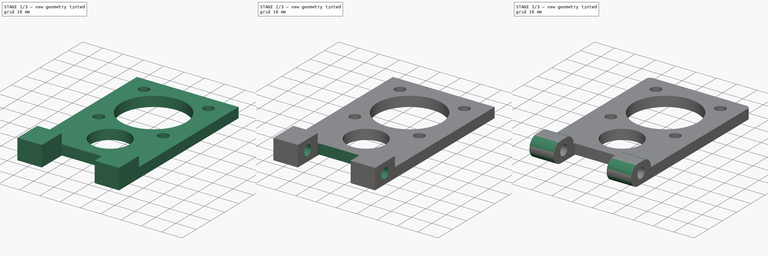
[diagram: build sequence overview — one tinted view per stage of 3, left to right]
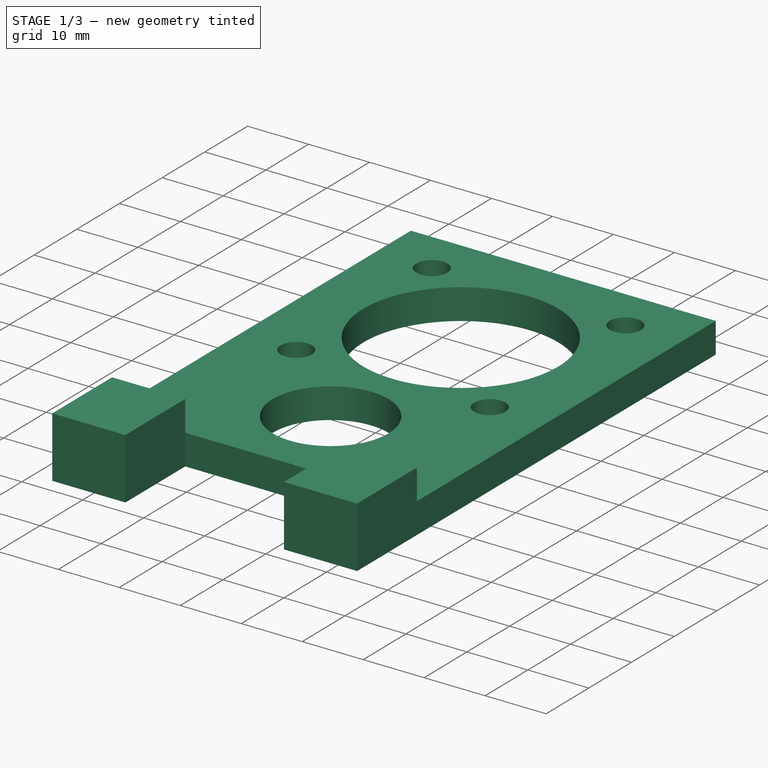
[diagram: stage 1 of 3 — iso view after this stage's code; geometry added in this stage tinted green]
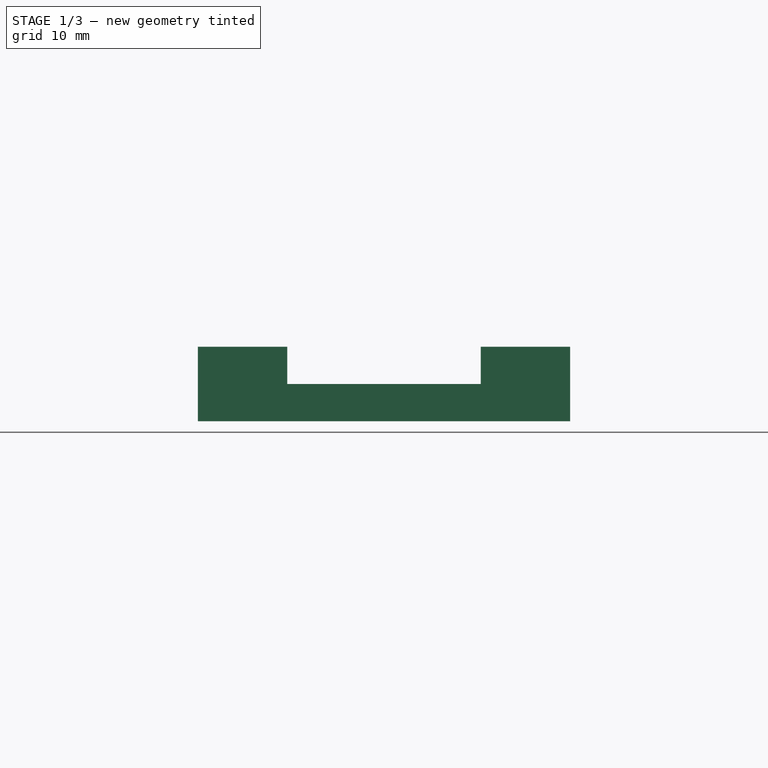
[diagram: stage 1 of 3 — front view after this stage's code; geometry added in this stage tinted green]
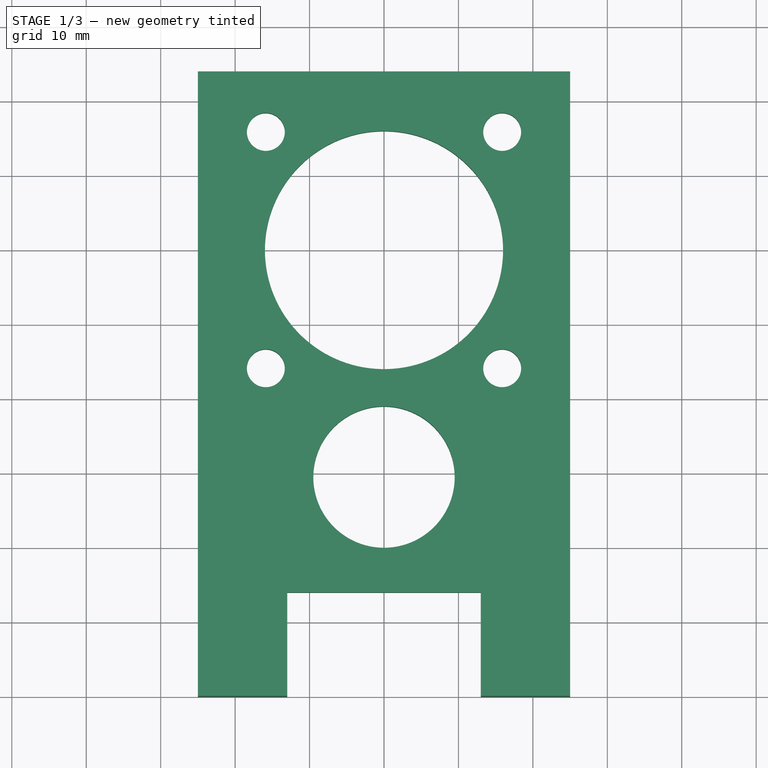
[diagram: stage 1 of 3 — top view after this stage's code; geometry added in this stage tinted green]
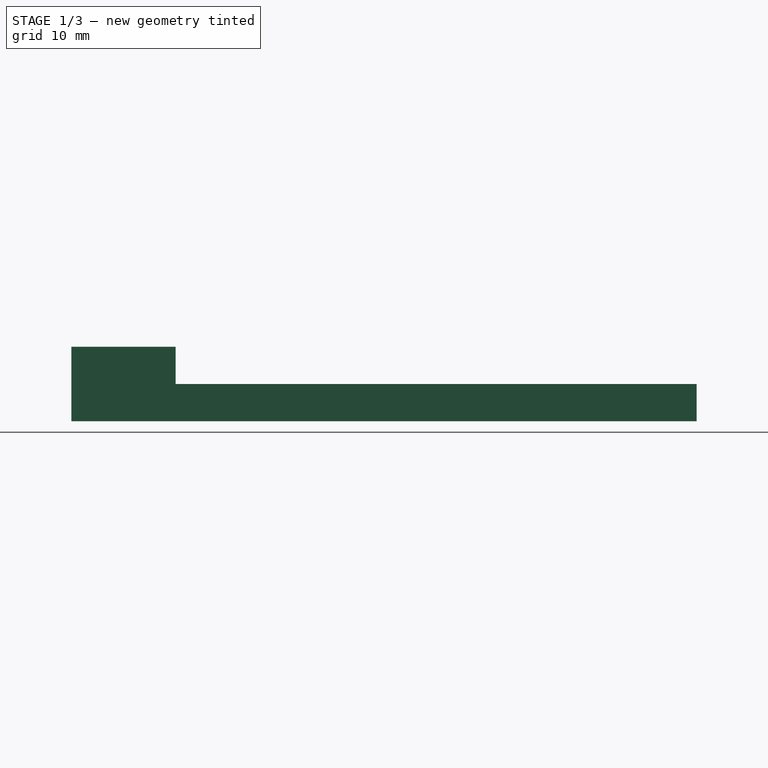
[diagram: stage 1 of 3 — right view after this stage's code; geometry added in this stage tinted green]
FCSTD DOCUMENT  (FreeCAD 0.21R33668 +26 (Git))
Label: Door Hinge large
License: All rights reserved
LicenseURL: http://en.wikipedia.org/wiki/All_rights_reserved
objects: Sketcher::SketchObject×4, PartDesign::Pad×2, PartDesign::Pocket×2, PartDesign::Fillet×2, PartDesign::Body×1
note: 17 computed .brp shape members not serialized (recipe doc carries the construction recipe); baked Part::Feature solids carry a one-line shape summary decoded from their .brp

FEATURE [Sketcher::SketchObject] Sketch
  FullyConstrained = true
  MapMode = 5
  Support = -> [XY_Plane]
  sketch-geometry (10):
    g0: Circle CenterX=0 CenterY=0 CenterZ=0 NormalX=0 NormalY=0 NormalZ=1 AngleXU=0 Radius=16
    g1: Circle CenterX=15.875 CenterY=15.875 CenterZ=0 NormalX=0 NormalY=0 NormalZ=1 AngleXU=0 Radius=2.55
    g2: Circle CenterX=-15.875 CenterY=15.875 CenterZ=0 NormalX=0 NormalY=0 NormalZ=1 AngleXU=0 Radius=2.55
    g3: Circle CenterX=-15.875 CenterY=-15.875 CenterZ=0 NormalX=0 NormalY=0 NormalZ=1 AngleXU=0 Radius=2.55
    g4: Circle CenterX=15.875 CenterY=-15.875 CenterZ=0 NormalX=0 NormalY=0 NormalZ=1 AngleXU=0 Radius=2.55
    g5: Circle CenterX=0 CenterY=-30.5 CenterZ=0 NormalX=0 NormalY=0 NormalZ=1 AngleXU=0 Radius=9.5
    g6: LineSegment StartX=-25 StartY=24 StartZ=0 EndX=25 EndY=24 EndZ=0
    g7: LineSegment StartX=25 StartY=24 StartZ=0 EndX=25 EndY=-46 EndZ=0
    g8: LineSegment StartX=25 StartY=-46 StartZ=0 EndX=-25 EndY=-46 EndZ=0
    g9: LineSegment StartX=-25 StartY=-46 StartZ=0 EndX=-25 EndY=24 EndZ=0
  constraints (27):
    c: Coincident(g0,g-1)
    c: Diameter(g2) = 5.1
    c: Equal(g2,g1)
    c: Equal(g2,g3)
    c: Equal(g2,g4)
    c: Horizontal(g2,g1)
    c: Horizontal(g3,g4)
    c: Vertical(g2,g3)
    c: Vertical(g4,g1)
    c: DistanceX(g2,g1) = 31.75
    c: Symmetric(g2,g4,g0)
    c: DistanceY(g4,g1) = 31.75
    c: Diameter(g0) = 32
    c: PointOnObject(g5,g-2)
    c: Diameter(g5) = 19
    c: DistanceY(g5,g0) = 30.5
    c: Coincident(g6,g7)
    c: Coincident(g7,g8)
    c: Coincident(g8,g9)
    c: Coincident(g9,g6)
    c: Horizontal(g8)
    c: Vertical(g7)
    c: Vertical(g9)
    c: Symmetric(g6,g6,g-2)
    c: DistanceX(g6,g6) = 50
    c: DistanceY(g8,g6) = 70
    c: DistanceY(g0,g6) = 24
FEATURE [PartDesign::Pad] Pad
  Direction = (0,0,1)
  Length = 5
  Length2 = 10
  Profile = -> Sketch
  ReferenceAxis = -> Sketch [N_Axis]
  Type = 0
FEATURE [Sketcher::SketchObject] Sketch001
  FullyConstrained = true
  MapMode = 5
  Support = -> [XY_Plane]
  sketch-geometry (8):
    g0: LineSegment StartX=-25 StartY=-46 StartZ=0 EndX=-13 EndY=-46 EndZ=0
    g1: LineSegment StartX=-13 StartY=-46 StartZ=0 EndX=-13 EndY=-60 EndZ=0
    g2: LineSegment StartX=-13 StartY=-60 StartZ=0 EndX=-25 EndY=-60 EndZ=0
    g3: LineSegment StartX=-25 StartY=-60 StartZ=0 EndX=-25 EndY=-46 EndZ=0
    g4: LineSegment StartX=13 StartY=-60 StartZ=0 EndX=25 EndY=-60 EndZ=0
    g5: LineSegment StartX=25 StartY=-60 StartZ=0 EndX=25 EndY=-46 EndZ=0
    g6: LineSegment StartX=25 StartY=-46 StartZ=0 EndX=13 EndY=-46 EndZ=0
    g7: LineSegment StartX=13 StartY=-46 StartZ=0 EndX=13 EndY=-60 EndZ=0
  constraints (23):
    c: Coincident(g0,g1)
    c: Coincident(g1,g2)
    c: Coincident(g2,g3)
    c: Coincident(g3,g0)
    c: Horizontal(g0)
    c: Horizontal(g2)
    c: Vertical(g1)
    c: Vertical(g3)
    c: Coincident(g4,g5)
    c: Coincident(g5,g6)
    c: Coincident(g6,g7)
    c: Coincident(g7,g4)
    c: Horizontal(g4)
    c: Horizontal(g6)
    c: Vertical(g5)
    c: Vertical(g7)
    c: Equal(g0,g6)
    c: Equal(g7,g1)
    c: Symmetric(g0,g6,g-2)
    c: DistanceY(g0,g-1) = 46
    c: DistanceX(g2,g1) = 12
    c: DistanceX(g1,g4) = 26
    c: DistanceY(g2,g0) = 14
FEATURE [PartDesign::Pad] Pad001
  BaseFeature = -> Pad
  Direction = (0,0,1)
  Length = 10
  Length2 = 10
  Profile = -> Sketch001
  ReferenceAxis = -> Sketch001 [N_Axis]
  Type = 0
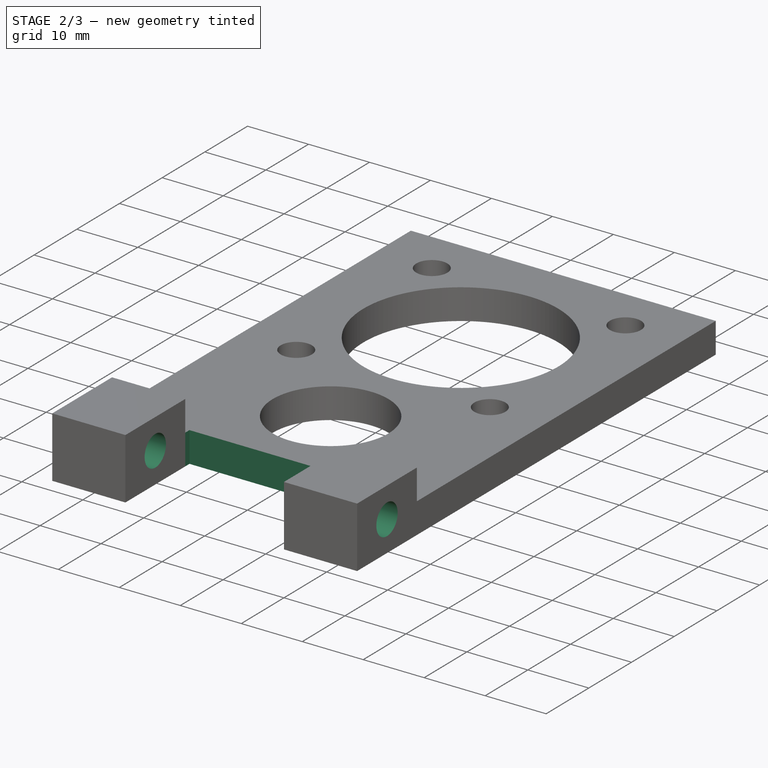
[diagram: stage 2 of 3 — iso view after this stage's code; geometry added in this stage tinted green]
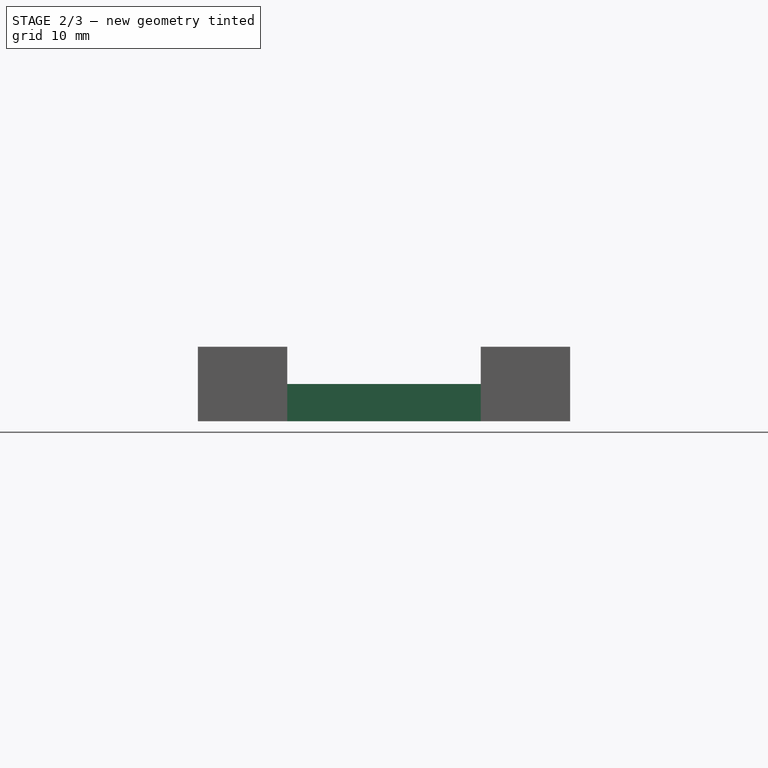
[diagram: stage 2 of 3 — front view after this stage's code; geometry added in this stage tinted green]
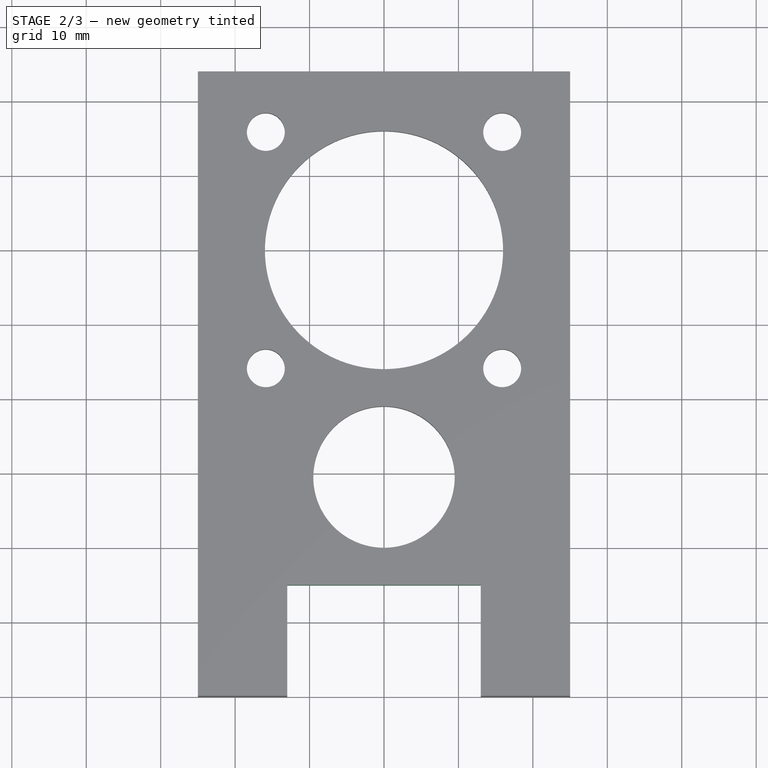
[diagram: stage 2 of 3 — top view after this stage's code; geometry added in this stage tinted green]
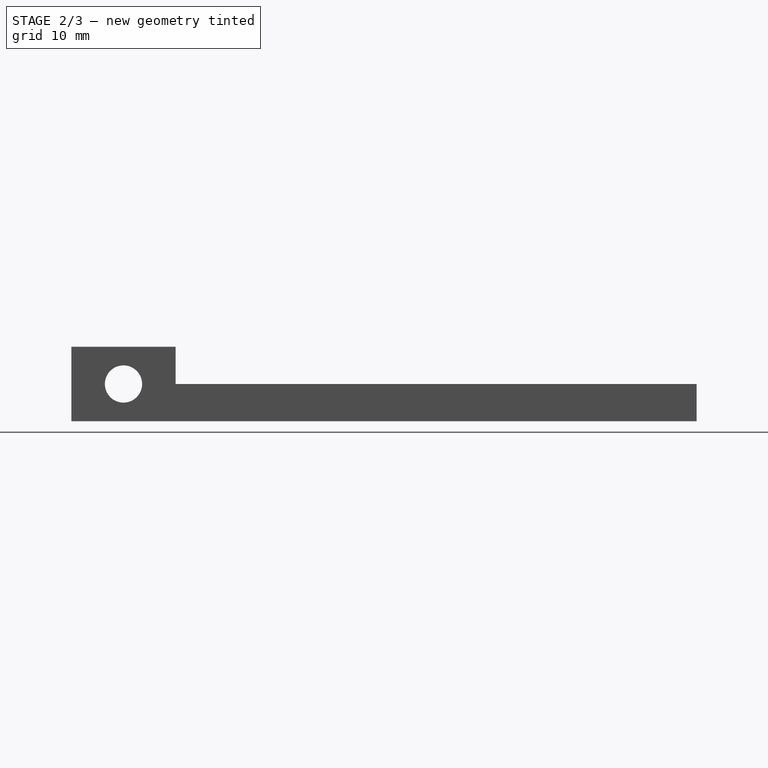
[diagram: stage 2 of 3 — right view after this stage's code; geometry added in this stage tinted green]
FEATURE [Sketcher::SketchObject] Sketch002
  FullyConstrained = true
  MapMode = 5
  Placement = pos=(0,0,0) rot=(0.57735,0.57735,0.57735;2.0944rad)
  Support = -> [YZ_Plane]
  sketch-geometry (1):
    g0: Circle CenterX=-53 CenterY=5 CenterZ=0 NormalX=0 NormalY=0 NormalZ=1 AngleXU=0 Radius=2.5
  constraints (3):
    c: DistanceY(g-1,g0) = 5
    c: Diameter(g0) = 5
    c: DistanceX(g0,g-1) = 53
FEATURE [PartDesign::Pocket] Pocket
  BaseFeature = -> Pad001
  Direction = (-1,2e-16,-3e-16)
  Length = 50
  Length2 = 5
  Midplane = true
  Profile = -> Sketch002
  ReferenceAxis = -> Sketch002 [N_Axis]
  Type = 0
FEATURE [Sketcher::SketchObject] Sketch003
  FullyConstrained = true
  MapMode = 5
  Support = -> [XY_Plane]
  sketch-geometry (4):
    g0: LineSegment StartX=-13 StartY=-49 StartZ=0 EndX=13 EndY=-49 EndZ=0
    g1: LineSegment StartX=13 StartY=-49 StartZ=0 EndX=13 EndY=-45 EndZ=0
    g2: LineSegment StartX=13 StartY=-45 StartZ=0 EndX=-13 EndY=-45 EndZ=0
    g3: LineSegment StartX=-13 StartY=-45 StartZ=0 EndX=-13 EndY=-49 EndZ=0
  constraints (11):
    c: Coincident(g0,g1)
    c: Coincident(g1,g2)
    c: Coincident(g2,g3)
    c: Coincident(g3,g0)
    c: Horizontal(g0)
    c: Vertical(g1)
    c: Vertical(g3)
    c: DistanceX(g0,g0) = 26
    c: Symmetric(g1,g2,g-2)
    c: DistanceY(g1,g-1) = 45
    c: DistanceY(g0,g1) = 4
FEATURE [PartDesign::Pocket] Pocket001
  BaseFeature = -> Pocket
  Direction = (0,0,-1)
  Length = 10
  Length2 = 5
  Profile = -> Sketch003
  ReferenceAxis = -> Sketch003 [N_Axis]
  Reversed = true
  Type = 0
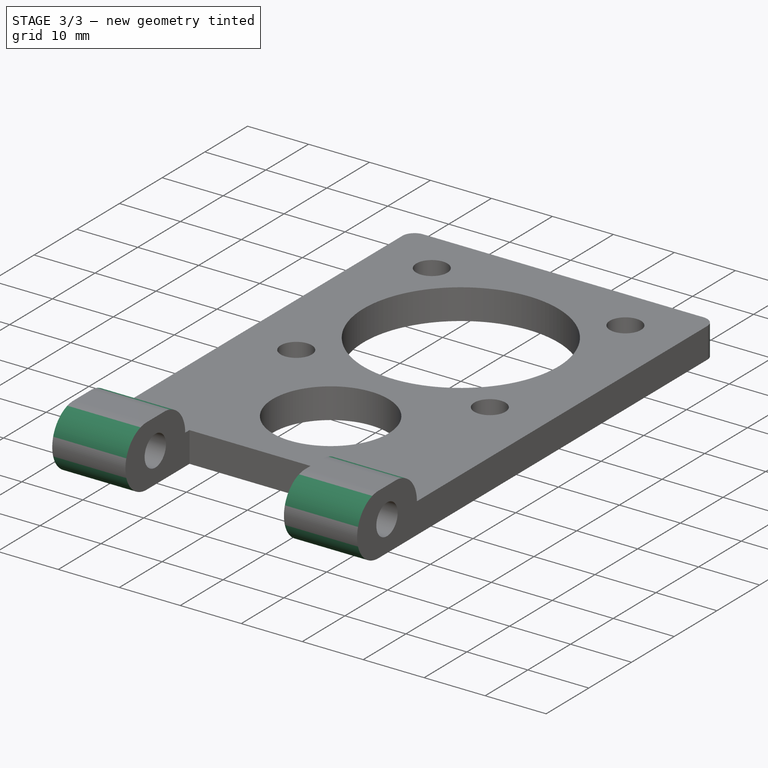
[diagram: stage 3 of 3 — iso view after this stage's code; geometry added in this stage tinted green]
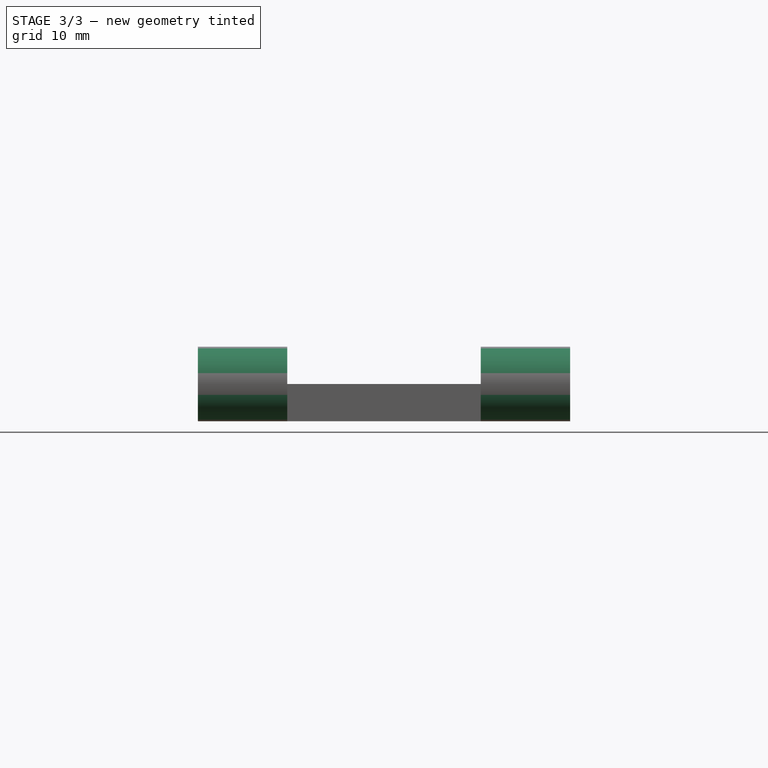
[diagram: stage 3 of 3 — front view after this stage's code; geometry added in this stage tinted green]
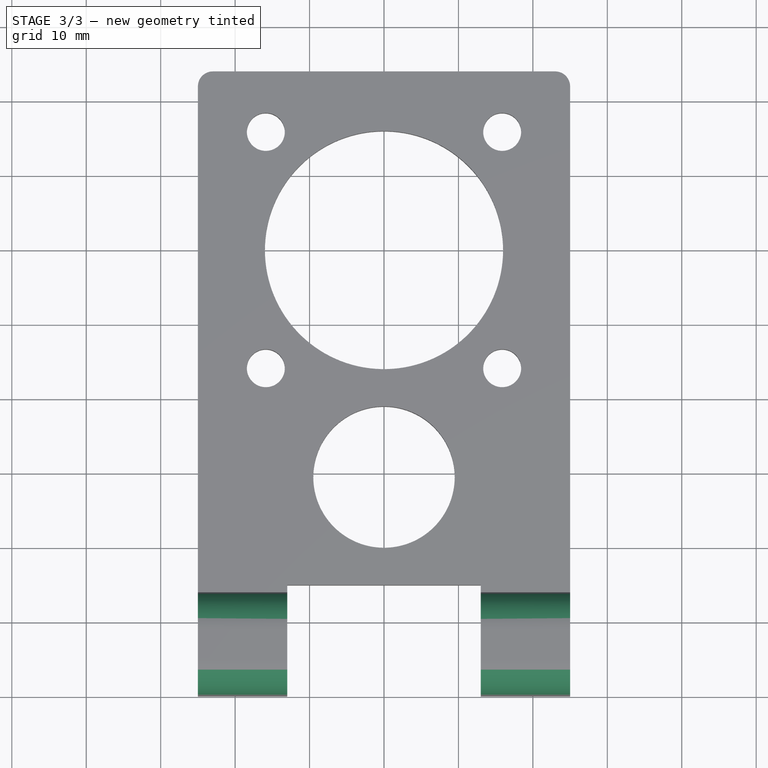
[diagram: stage 3 of 3 — top view after this stage's code; geometry added in this stage tinted green]
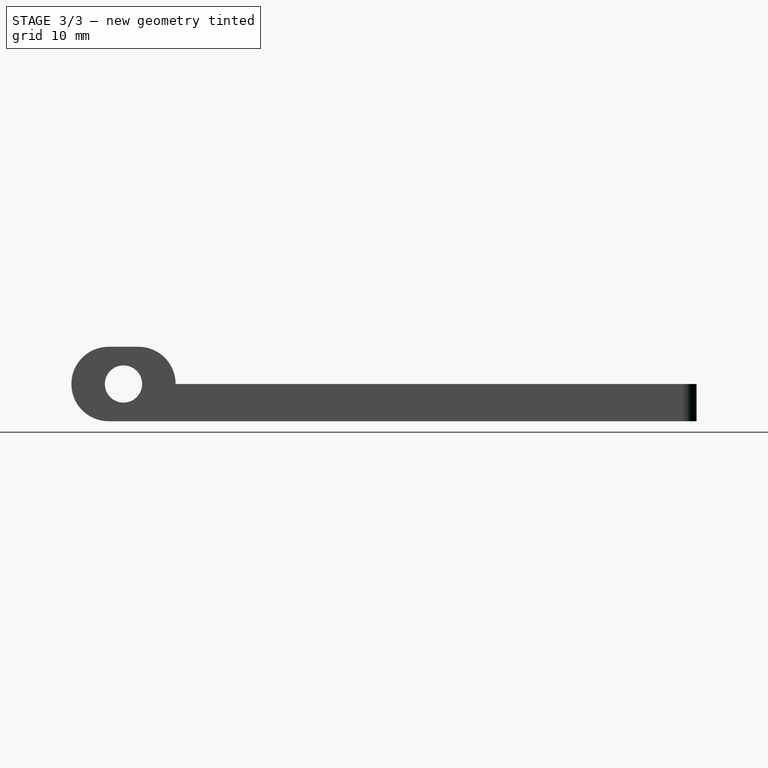
[diagram: stage 3 of 3 — right view after this stage's code; geometry added in this stage tinted green]
FEATURE [PartDesign::Fillet] Fillet
  Base = -> Pocket001 [Edge62,Edge64,Edge52,Edge43,Edge70,Edge60]
  BaseFeature = -> Pocket001
  Radius = 4.99
  SupportTransform = false
  UseAllEdges = false
FEATURE [PartDesign::Fillet] Fillet001
  Base = -> Fillet [Edge46,Edge22]
  BaseFeature = -> Fillet
  Radius = 2
  SupportTransform = false
  UseAllEdges = false
FEATURE [PartDesign::Body] Body
  Group = -> [Sketch,Pad,Sketch001,Pad001,Sketch002,Pocket,Sketch003,Pocket001,Fillet,Fillet001]
  Origin = -> Origin
  Tip = -> Fillet001
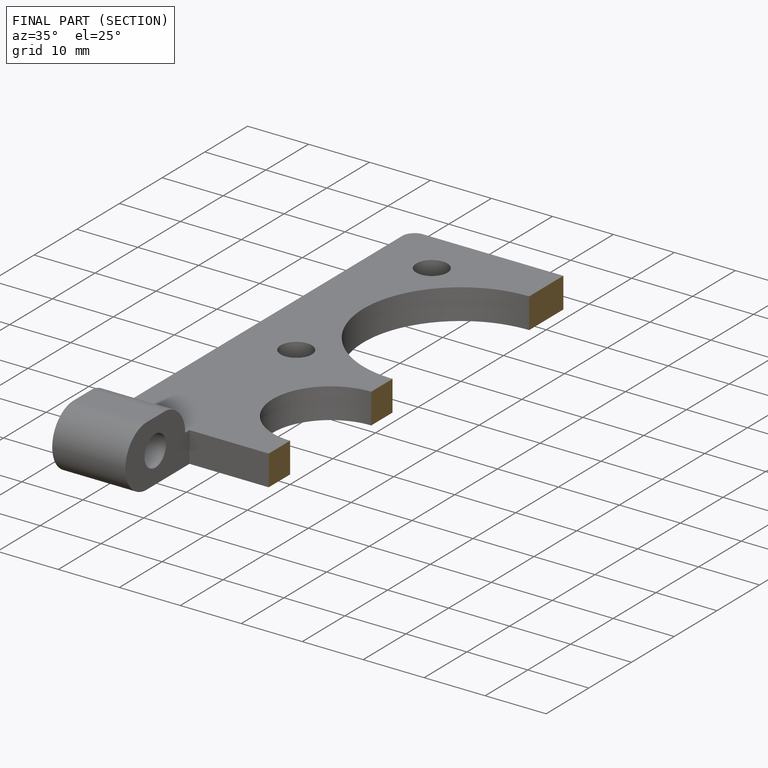
[diagram: finished part — half-section view (interior)]
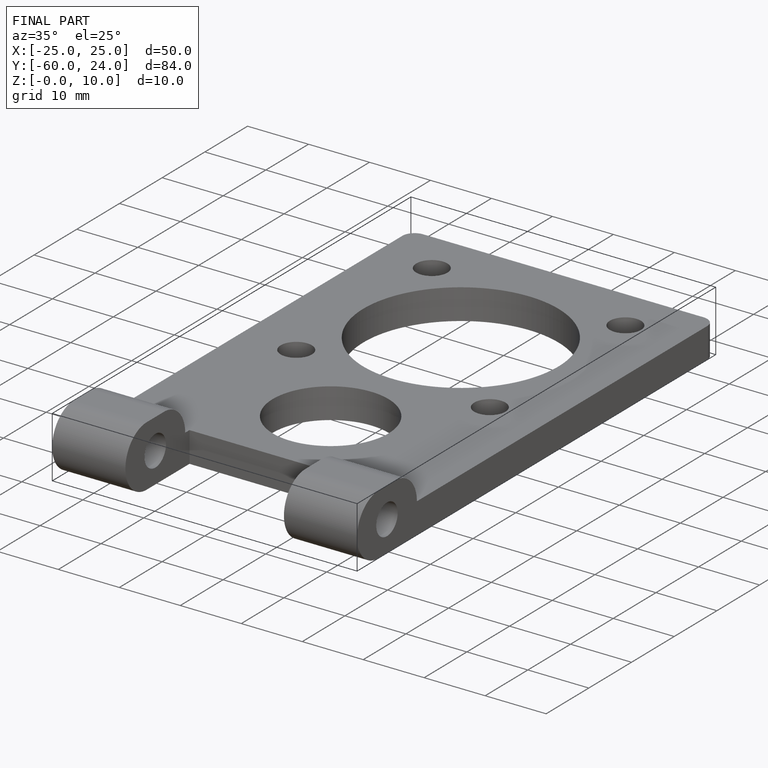
[diagram: finished part — iso view with bounding-box wireframe]
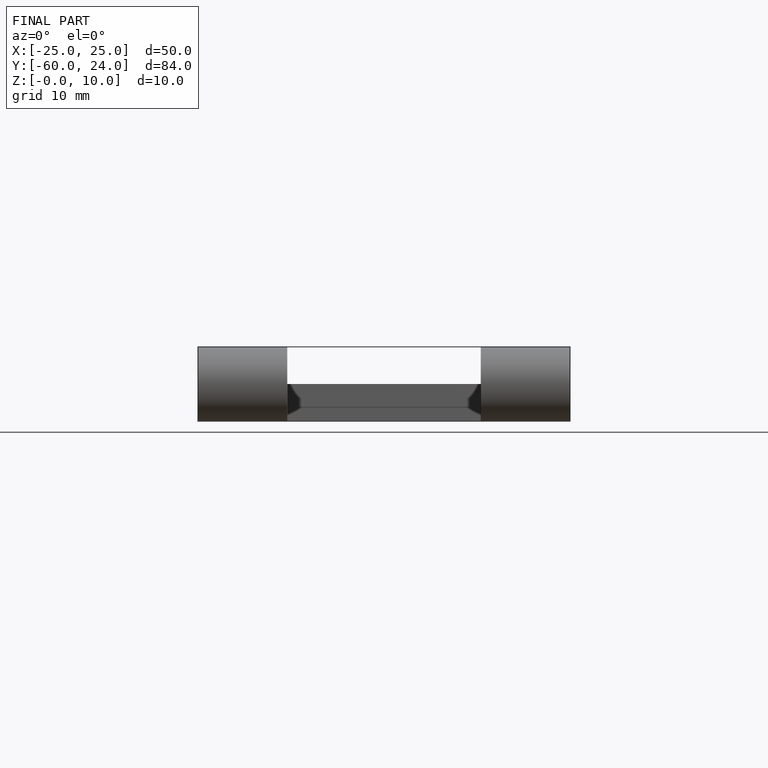
[diagram: finished part — front view with bounding-box wireframe]
